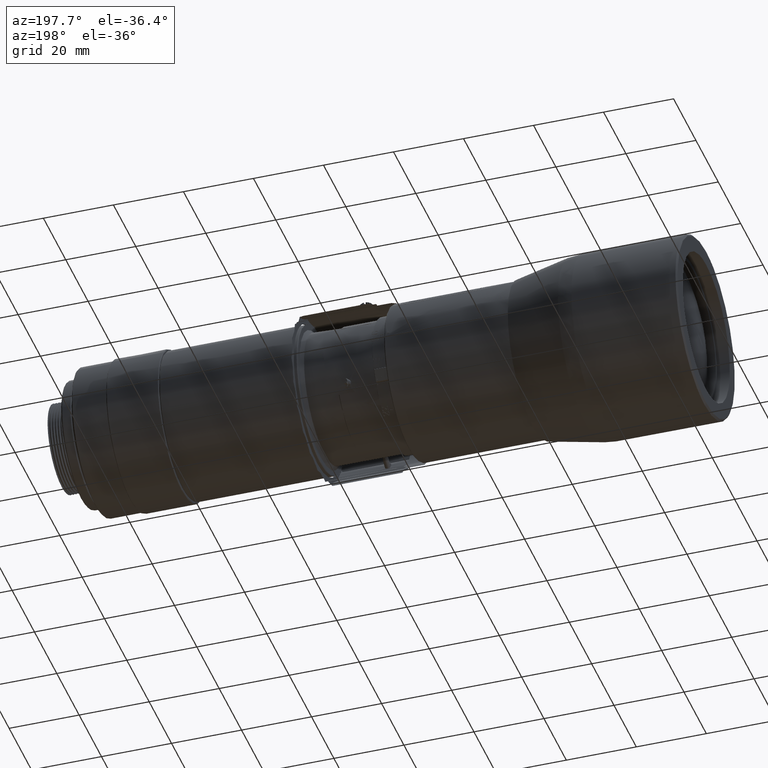
[diagram: clean part render]
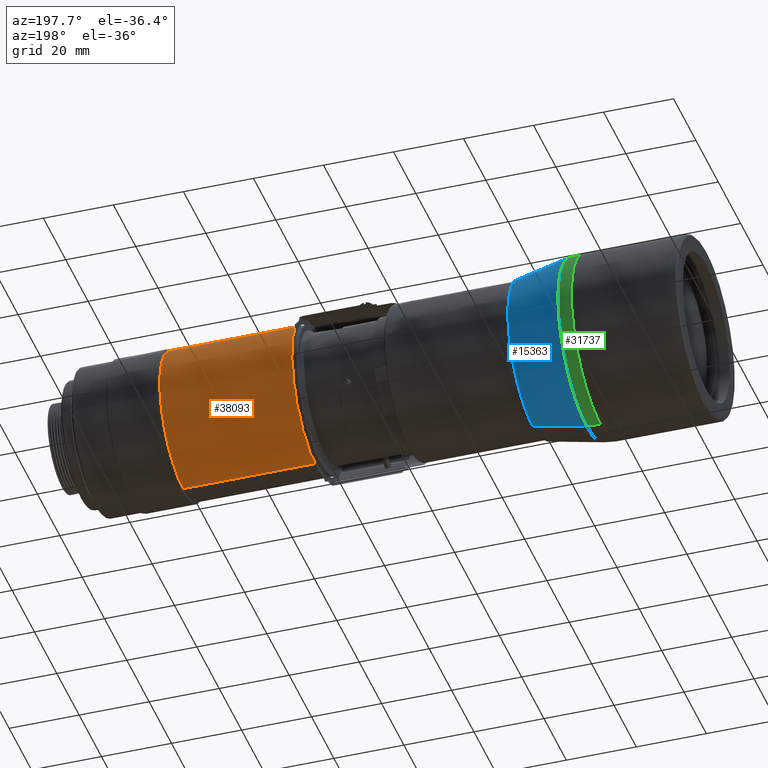
[diagram: same view with three faces highlighted in distinct colors, each labeled with its STEP entity id]
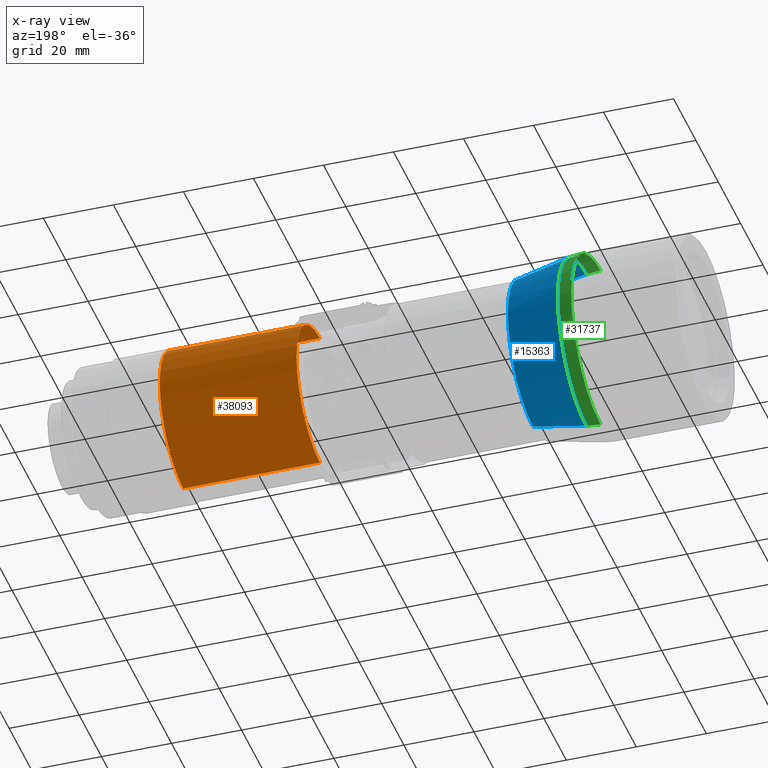
[diagram: x-ray of the same camera — body ghosted, the three highlighted faces saturated]
A machine part, auxiliary view with three faces highlighted in distinct colors.
The next image is the same camera in x-ray (body ghosted, the three faces saturated) — at least one of them is partly hidden behind the body in this view.
Their STEP definitions:

[orange] entity #38093 — the highlighted face is a freeform B-spline surface patch.
#496 = CARTESIAN_POINT ( 'NONE',  ( 64.73500235799998848, -2.000000000000000125E-09, 20.99999762099999856 ) ) ;
#507 = CARTESIAN_POINT ( 'NONE',  ( 64.73500235799998848, -8.999999999999999527E-09, -20.99999762099999856 ) ) ;
#3013 = CARTESIAN_POINT ( 'NONE',  ( 25.65500280599998462, 12.30151379899999853, 20.99999762099999145 ) ) ;
#3914 = CARTESIAN_POINT ( 'NONE',  ( 64.73500235799998848, 20.99999762099999856, -4.000000000000000249E-09 ) ) ;
#4006 = CARTESIAN_POINT ( 'NONE',  ( 25.65500280599998462, 12.30151379899999853, -20.99999762099999501 ) ) ;
#4074 = EDGE_CURVE ( 'NONE', #13064, #45751, #12262, .T. ) ;
#5580 = CARTESIAN_POINT ( 'NONE',  ( 25.65500280599998462, 20.99999762399997749, 12.30151379399999634 ) ) ;
#6169 = VERTEX_POINT ( 'NONE', #496 ) ;
#6471 = CARTESIAN_POINT ( 'NONE',  ( 64.73500235800007374, 20.99999761800000897, -12.30151380300000596 ) ) ;
#7482 = CARTESIAN_POINT ( 'NONE',  ( 25.65500280599998462, 20.99999762399997749, -12.30151379399999634 ) ) ;
#8264 = EDGE_CURVE ( 'NONE', #12250, #45751, #17563, .T. ) ;
#10732 = CARTESIAN_POINT ( 'NONE',  ( 25.65500280599998462, 20.99999761800000897, 12.30151380300000596 ) ) ;
#11802 = ORIENTED_EDGE ( 'NONE', *, *, #4074, .T. ) ;
#12250 = VERTEX_POINT ( 'NONE', #19039 ) ;
#12262 = B_SPLINE_CURVE_WITH_KNOTS ( 'NONE', 1,
 ( #507, #25964 ),
 .UNSPECIFIED., .F., .F.,
 ( 2, 2 ),
 ( 0.0000000000000000000, 1.000000000000000000 ),
 .UNSPECIFIED. ) ;
#13064 = VERTEX_POINT ( 'NONE', #37719 ) ;
#13450 = CARTESIAN_POINT ( 'NONE',  ( 64.73500235800007374, 20.99999761800000897, -12.30151380300000774 ) ) ;
#13878 = CARTESIAN_POINT ( 'NONE',  ( 64.73500235800007374, 12.30151378999999956, -20.99999762600000963 ) ) ;
#16687 = CARTESIAN_POINT ( 'NONE',  ( 64.73500235800007374, 20.99999762399997749, 12.30151379399999634 ) ) ;
#17563 =( BOUNDED_CURVE ( )  B_SPLINE_CURVE ( 3, ( #32272, #24846, #10732, #20930, #7482, #4006, #42905 ),
 .UNSPECIFIED., .F., .F. ) 
 B_SPLINE_CURVE_WITH_KNOTS ( ( 4, 3, 4 ),
 ( 0.0000000000000000000, 0.5000000000000000000, 1.000000000000000000 ),
 .UNSPECIFIED. ) 
 CURVE ( )  GEOMETRIC_REPRESENTATION_ITEM ( )  RATIONAL_B_SPLINE_CURVE ( ( 1.000000000000000000, 0.8047378540760219412, 0.8047378540760219412, 1.000000000000000000, 0.8047378540760219412, 0.8047378540760219412, 1.000000000000000000 ) ) 
 REPRESENTATION_ITEM ( '' )  );
#19039 = CARTESIAN_POINT ( 'NONE',  ( 25.65500280599999883, -5.500000000000000446E-09, 20.99999762099999856 ) ) ;
#19652 =( BOUNDED_CURVE ( )  B_SPLINE_CURVE ( 3, ( #27776, #34966, #35651, #3914, #6471, #13878, #21299 ),
 .UNSPECIFIED., .F., .F. ) 
 B_SPLINE_CURVE_WITH_KNOTS ( ( 4, 3, 4 ),
 ( 0.0000000000000000000, 0.5000000000000000000, 1.000000000000000000 ),
 .UNSPECIFIED. ) 
 CURVE ( )  GEOMETRIC_REPRESENTATION_ITEM ( )  RATIONAL_B_SPLINE_CURVE ( ( 1.000000000000000000, 0.8047378540760219412, 0.8047378540760219412, 1.000000000000000000, 0.8047378540760219412, 0.8047378540760219412, 1.000000000000000000 ) ) 
 REPRESENTATION_ITEM ( '' )  );
#20173 = FACE_OUTER_BOUND ( 'NONE', #41342, .T. ) ;
#20396 = CARTESIAN_POINT ( 'NONE',  ( 25.65500280599999883, 20.99999762099999856, -4.000000000000000249E-09 ) ) ;
#20930 = CARTESIAN_POINT ( 'NONE',  ( 25.65500280599999883, 20.99999762099999856, 4.000000000000000249E-09 ) ) ;
#21299 = CARTESIAN_POINT ( 'NONE',  ( 64.73500235799998848, -8.999999999999999527E-09, -20.99999762099999856 ) ) ;
#23637 = CARTESIAN_POINT ( 'NONE',  ( 25.65500280599998462, 20.99999761800000897, -12.30151380300000774 ) ) ;
#24846 = CARTESIAN_POINT ( 'NONE',  ( 25.65500280599998462, 12.30151378999999956, 20.99999762600000963 ) ) ;
#25964 = CARTESIAN_POINT ( 'NONE',  ( 25.65500280599999883, -5.500000000000000446E-09, -20.99999762099999856 ) ) ;
#27108 = CARTESIAN_POINT ( 'NONE',  ( 64.73500235800007374, 12.30151379899999853, 20.99999762099999145 ) ) ;
#27776 = CARTESIAN_POINT ( 'NONE',  ( 64.73500235799998848, -2.000000000000000125E-09, 20.99999762099999856 ) ) ;
#27871 = ORIENTED_EDGE ( 'NONE', *, *, #42059, .T. ) ;
#28570 = ORIENTED_EDGE ( 'NONE', *, *, #36710, .T. ) ;
#30210 =( BOUNDED_SURFACE ( )  B_SPLINE_SURFACE ( 1, 3, ( 
 ( #30590, #27108, #16687, #30816, #13450, #45143, #44913 ),
 ( #40985, #3013, #5580, #20396, #23637, #37997, #38226 ) ),
 .UNSPECIFIED., .F., .F., .F. ) 
 B_SPLINE_SURFACE_WITH_KNOTS ( ( 2, 2 ),
 ( 4, 3, 4 ),
 ( 0.0000000000000000000, 1.000000000000000000 ),
 ( 0.0000000000000000000, 0.5000000000000000000, 1.000000000000000000 ),
 .UNSPECIFIED. ) 
 GEOMETRIC_REPRESENTATION_ITEM ( )  RATIONAL_B_SPLINE_SURFACE ( (
 ( 1.000000000000000000, 0.8047378540760219412, 0.8047378540760219412, 1.000000000000000000, 0.8047378540760219412, 0.8047378540760219412, 1.000000000000000000),
 ( 1.000000000000000000, 0.8047378540760219412, 0.8047378540760219412, 1.000000000000000000, 0.8047378540760219412, 0.8047378540760219412, 1.000000000000000000) ) ) 
 REPRESENTATION_ITEM ( '' )  SURFACE ( )  );
#30590 = CARTESIAN_POINT ( 'NONE',  ( 64.73500235799998848, 0.0000000000000000000, 20.99999762099999856 ) ) ;
#30816 = CARTESIAN_POINT ( 'NONE',  ( 64.73500235799998848, 20.99999762099999856, -4.000000000000000249E-09 ) ) ;
#32272 = CARTESIAN_POINT ( 'NONE',  ( 25.65500280599999883, -5.500000000000000446E-09, 20.99999762099999856 ) ) ;
#34966 = CARTESIAN_POINT ( 'NONE',  ( 64.73500235800007374, 12.30151379899999853, 20.99999762099999501 ) ) ;
#35014 = CARTESIAN_POINT ( 'NONE',  ( 25.65500280599999883, -5.500000000000000446E-09, -20.99999762099999856 ) ) ;
#35651 = CARTESIAN_POINT ( 'NONE',  ( 64.73500235800007374, 20.99999762399997749, 12.30151379399999634 ) ) ;
#36710 = EDGE_CURVE ( 'NONE', #12250, #6169, #43646, .T. ) ;
#37619 = ORIENTED_EDGE ( 'NONE', *, *, #8264, .F. ) ;
#37719 = CARTESIAN_POINT ( 'NONE',  ( 64.73500235799998848, -8.999999999999999527E-09, -20.99999762099999856 ) ) ;
#37997 = CARTESIAN_POINT ( 'NONE',  ( 25.65500280599998462, 12.30151378999999778, -20.99999762600000608 ) ) ;
#38093 = ADVANCED_FACE ( 'NONE', ( #20173 ), #30210, .F. ) ;
#38226 = CARTESIAN_POINT ( 'NONE',  ( 25.65500280599999883, -8.999999999999999527E-09, -20.99999762099999856 ) ) ;
#40985 = CARTESIAN_POINT ( 'NONE',  ( 25.65500280599999883, 0.0000000000000000000, 20.99999762099999856 ) ) ;
#41342 = EDGE_LOOP ( 'NONE', ( #27871, #11802, #37619, #28570 ) ) ;
#42059 = EDGE_CURVE ( 'NONE', #6169, #13064, #19652, .T. ) ;
#42723 = CARTESIAN_POINT ( 'NONE',  ( 25.65500280599999883, -5.500000000000000446E-09, 20.99999762099999856 ) ) ;
#42905 = CARTESIAN_POINT ( 'NONE',  ( 25.65500280599999883, -5.500000000000000446E-09, -20.99999762099999856 ) ) ;
#43418 = CARTESIAN_POINT ( 'NONE',  ( 64.73500235799998848, -2.000000000000000125E-09, 20.99999762099999856 ) ) ;
#43646 = B_SPLINE_CURVE_WITH_KNOTS ( 'NONE', 1,
 ( #42723, #43418 ),
 .UNSPECIFIED., .F., .F.,
 ( 2, 2 ),
 ( 0.0000000000000000000, 1.000000000000000000 ),
 .UNSPECIFIED. ) ;
#44913 = CARTESIAN_POINT ( 'NONE',  ( 64.73500235799998848, -8.999999999999999527E-09, -20.99999762099999856 ) ) ;
#45143 = CARTESIAN_POINT ( 'NONE',  ( 64.73500235800007374, 12.30151378999999778, -20.99999762600000608 ) ) ;
#45751 = VERTEX_POINT ( 'NONE', #35014 ) ;

[blue] entity #15363 — the highlighted face is a freeform B-spline surface patch.
#20 = CARTESIAN_POINT ( 'NONE',  ( -50.43911717099999947, -5.500000000000000446E-09, -25.60103379000000245 ) ) ;
#668 = CARTESIAN_POINT ( 'NONE',  ( -35.14712303100002089, 21.35129305312602455, 7.248759376147805078 ) ) ;
#898 = CARTESIAN_POINT ( 'NONE',  ( -35.14712303100001378, 9.971997183265111531, 20.22329103859236099 ) ) ;
#1121 = CARTESIAN_POINT ( 'NONE',  ( -35.14712303100001378, 22.50000274575699777, -1.473805675064863818 ) ) ;
#1301 = CARTESIAN_POINT ( 'NONE',  ( -50.43911717099999947, 25.60103379000000245, -5.000000000000000105E-09 ) ) ;
#1353 = CARTESIAN_POINT ( 'NONE',  ( -35.14712303100001378, 5.835019678142797872, 21.78014632167326070 ) ) ;
#1523 = CARTESIAN_POINT ( 'NONE',  ( -35.14712303100000668, -8.999999999999999527E-09, -22.50000275700000074 ) ) ;
#1929 = EDGE_LOOP ( 'NONE', ( #10620, #34042, #26924, #28099 ) ) ;
#1975 = CARTESIAN_POINT ( 'NONE',  ( -35.14712303100003510, 22.50000276000003652, 13.18019645899999581 ) ) ;
#5432 = EDGE_CURVE ( 'NONE', #23212, #45393, #42978, .T. ) ;
#7151 = CARTESIAN_POINT ( 'NONE',  ( -35.14712303100001378, 17.88926598964513559, -13.72575643705184234 ) ) ;
#7839 = CARTESIAN_POINT ( 'NONE',  ( -35.14712303100001378, 20.22329103859236099, -9.971997183265111531 ) ) ;
#8247 = CARTESIAN_POINT ( 'NONE',  ( -50.43911717100003500, 25.60103378699998089, -14.99673839100000805 ) ) ;
#8297 = CARTESIAN_POINT ( 'NONE',  ( -50.43911717100005632, 51.20206758099995881, -25.60103378999999890 ) ) ;
#8301 = CARTESIAN_POINT ( 'NONE',  ( -35.14712303100001378, 22.35519679157398087, 2.944045886472851592 ) ) ;
#8469 = CARTESIAN_POINT ( 'NONE',  ( -50.43911717100003500, 14.99673837499999074, -25.60103379599999585 ) ) ;
#8923 = CARTESIAN_POINT ( 'NONE',  ( -35.14712303100000668, 0.0000000000000000000, 22.50000275700000074 ) ) ;
#9148 = CARTESIAN_POINT ( 'NONE',  ( -50.43911717100003500, 25.60103379300000981, 14.99673838100000367 ) ) ;
#9922 = CARTESIAN_POINT ( 'NONE',  ( -50.43911717099999947, -1.250000000000000026E-09, 25.60103379000000245 ) ) ;
#10620 = ORIENTED_EDGE ( 'NONE', *, *, #31805, .F. ) ;
#11953 = CARTESIAN_POINT ( 'NONE',  ( -35.14712303100003510, 22.50000275400000760, -13.18019646800002143 ) ) ;
#12407 = CARTESIAN_POINT ( 'NONE',  ( -50.43911717100003500, 14.99673838599999343, 25.60103379000003088 ) ) ;
#13495 = CARTESIAN_POINT ( 'NONE',  ( -35.14712303100000668, -1.333333333333333899E-09, 22.50000275325234966 ) ) ;
#13641 = CARTESIAN_POINT ( 'NONE',  ( -35.14712303100000668, 7.248759376147791755, -21.35129305312602455 ) ) ;
#14097 = CARTESIAN_POINT ( 'NONE',  ( -35.14712303100000668, 1.473805675064863596, -22.50000274575699777 ) ) ;
#14564 = CARTESIAN_POINT ( 'NONE',  ( -35.14712303100001378, 21.35129305312602455, -7.248759376147797973 ) ) ;
#14791 = CARTESIAN_POINT ( 'NONE',  ( -35.14712303100000668, 1.473805675064863818, 22.50000274575699777 ) ) ;
#14965 = CARTESIAN_POINT ( 'NONE',  ( -50.43911717099999947, -5.500000000000000446E-09, -25.60103379000000245 ) ) ;
#15014 = CARTESIAN_POINT ( 'NONE',  ( -35.14712303100002089, 19.52687111046028434, 11.27490718675019821 ) ) ;
#15363 = ADVANCED_FACE ( 'NONE', ( #40630 ), #28917, .F. ) ;
#15473 = CARTESIAN_POINT ( 'NONE',  ( -35.14712303100001378, 21.78014626095324857, 5.835019678142798760 ) ) ;
#16098 = CARTESIAN_POINT ( 'NONE',  ( -50.43911717099999947, 0.0000000000000000000, 25.60103379000000245 ) ) ;
#16584 = B_SPLINE_CURVE_WITH_KNOTS ( 'NONE', 1,
 ( #39454, #25547 ),
 .UNSPECIFIED., .F., .F.,
 ( 2, 2 ),
 ( 0.0000000000000000000, 1.000000000000000000 ),
 .UNSPECIFIED. ) ;
#17345 = CARTESIAN_POINT ( 'NONE',  ( -35.14712303100001378, 9.971997183265120412, -20.22329103859236099 ) ) ;
#18269 = CARTESIAN_POINT ( 'NONE',  ( -35.14712303100001378, 21.78014632167325360, -5.835019678142797872 ) ) ;
#18389 = EDGE_CURVE ( 'NONE', #38177, #45393, #40015, .T. ) ;
#18953 = CARTESIAN_POINT ( 'NONE',  ( -35.14712303100001378, 13.72575643705184234, 17.88926598964513559 ) ) ;
#19729 = B_SPLINE_CURVE_WITH_KNOTS ( 'NONE', 3,
 ( #45793, #14097, #31240, #45335, #13641, #17345, #28220, #42339, #24746, #38879, #7151, #21283, #7839, #14564, #18269, #21984, #1121, #32398, #8301, #15473, #668, #28683, #15014, #25206, #32626, #22207, #18953, #42800, #898, #33079, #1353, #36562, #14791, #43713 ),
 .UNSPECIFIED., .F., .F.,
 ( 4, 2, 2, 2, 2, 2, 2, 2, 2, 2, 2, 2, 2, 2, 2, 2, 4 ),
 ( 0.0000000000000000000, 0.06250000000000000000, 0.1250000000000000000, 0.1875000000000000000, 0.2500000000000000000, 0.3125000000000000000, 0.3750000000000000000, 0.4375000000000000000, 0.5000000000000000000, 0.5625000000000000000, 0.6250000000000000000, 0.6875000000000000000, 0.7500000000000000000, 0.8125000000000000000, 0.8750000000000000000, 0.9375000000000000000, 1.000000000000000000 ),
 .UNSPECIFIED. ) ;
#21283 = CARTESIAN_POINT ( 'NONE',  ( -35.14712303100001378, 19.52687111046028079, -11.27490712603019141 ) ) ;
#21663 = CARTESIAN_POINT ( 'NONE',  ( -50.43911717099999947, -5.500000000000000446E-09, -25.60103379000000245 ) ) ;
#21984 = CARTESIAN_POINT ( 'NONE',  ( -35.14712303100001378, 22.35519673085397230, -2.944045886472851592 ) ) ;
#22207 = CARTESIAN_POINT ( 'NONE',  ( -35.14712303099999957, 14.86776655730191976, 16.95204250420748338 ) ) ;
#23060 = CARTESIAN_POINT ( 'NONE',  ( -50.43911717099999947, -1.100000000000000089E-08, -25.60103379000000245 ) ) ;
#23212 = VERTEX_POINT ( 'NONE', #9922 ) ;
#24746 = CARTESIAN_POINT ( 'NONE',  ( -35.14712303100000668, 14.86776655730191976, -16.95204250420747982 ) ) ;
#25206 = CARTESIAN_POINT ( 'NONE',  ( -35.14712303099999957, 17.88926598964513204, 13.72575637633183732 ) ) ;
#25265 = CARTESIAN_POINT ( 'NONE',  ( -50.43911717100005632, 51.20206758099995881, 25.60103378999999890 ) ) ;
#25424 = VERTEX_POINT ( 'NONE', #13495 ) ;
#25547 = CARTESIAN_POINT ( 'NONE',  ( -35.14712303100000668, -1.333333333333333899E-09, 22.50000275325234966 ) ) ;
#26924 = ORIENTED_EDGE ( 'NONE', *, *, #5432, .F. ) ;
#28099 = ORIENTED_EDGE ( 'NONE', *, *, #36824, .T. ) ;
#28220 = CARTESIAN_POINT ( 'NONE',  ( -35.14712303100000668, 11.27490718675019821, -19.52687111046028079 ) ) ;
#28683 = CARTESIAN_POINT ( 'NONE',  ( -35.14712303100002089, 20.22329103859235389, 9.971997183265116860 ) ) ;
#28917 =( BOUNDED_SURFACE ( )  B_SPLINE_SURFACE ( 1, 3, ( 
 ( #8923, #40193, #1975, #32801, #11953, #33256, #1523 ),
 ( #16098, #12407, #9148, #1301, #8247, #8469, #23060 ) ),
 .UNSPECIFIED., .F., .F., .F. ) 
 B_SPLINE_SURFACE_WITH_KNOTS ( ( 2, 2 ),
 ( 4, 3, 4 ),
 ( 0.0000000000000000000, 1.000000000000000000 ),
 ( 0.0000000000000000000, 0.5000000000000000000, 1.000000000000000000 ),
 .UNSPECIFIED. ) 
 GEOMETRIC_REPRESENTATION_ITEM ( )  RATIONAL_B_SPLINE_SURFACE ( (
 ( 1.000000000000000000, 0.8047378540760219412, 0.8047378540760219412, 1.000000000000000000, 0.8047378540760219412, 0.8047378540760219412, 1.000000000000000000),
 ( 1.000000000000000000, 0.8047378540760219412, 0.8047378540760219412, 1.000000000000000000, 0.8047378540760219412, 0.8047378540760219412, 1.000000000000000000) ) ) 
 REPRESENTATION_ITEM ( '' )  SURFACE ( )  );
#29411 = CARTESIAN_POINT ( 'NONE',  ( -35.14712303100000668, -5.999999999999999960E-09, -22.50000275325234966 ) ) ;
#31240 = CARTESIAN_POINT ( 'NONE',  ( -35.14712303100000668, 2.944045886472852036, -22.35519679157398087 ) ) ;
#31805 = EDGE_CURVE ( 'NONE', #38177, #25424, #19729, .T. ) ;
#32075 = CARTESIAN_POINT ( 'NONE',  ( -35.14712303100000668, -5.999999999999999960E-09, -22.50000275325234966 ) ) ;
#32398 = CARTESIAN_POINT ( 'NONE',  ( -35.14712303099999957, 22.50000274575699422, 1.473805675064864040 ) ) ;
#32626 = CARTESIAN_POINT ( 'NONE',  ( -35.14712303100001378, 16.95204250420747272, 14.86776655730192331 ) ) ;
#32801 = CARTESIAN_POINT ( 'NONE',  ( -35.14712303100000668, 22.50000275700000074, -5.000000000000000105E-09 ) ) ;
#33079 = CARTESIAN_POINT ( 'NONE',  ( -35.14712303099999957, 7.248759376147796196, 21.35129305312602455 ) ) ;
#33256 = CARTESIAN_POINT ( 'NONE',  ( -35.14712303100003510, 13.18019645500000969, -22.50000276200000471 ) ) ;
#34042 = ORIENTED_EDGE ( 'NONE', *, *, #18389, .T. ) ;
#35465 = CARTESIAN_POINT ( 'NONE',  ( -50.43911717099999947, -1.250000000000000026E-09, 25.60103379000000245 ) ) ;
#36562 = CARTESIAN_POINT ( 'NONE',  ( -35.14712303100000668, 2.944045886472851148, 22.35519673085397230 ) ) ;
#36824 = EDGE_CURVE ( 'NONE', #23212, #25424, #16584, .T. ) ;
#38177 = VERTEX_POINT ( 'NONE', #29411 ) ;
#38879 = CARTESIAN_POINT ( 'NONE',  ( -35.14712303100001378, 16.95204250420747982, -14.86776655730192331 ) ) ;
#39454 = CARTESIAN_POINT ( 'NONE',  ( -50.43911717099999947, -1.250000000000000026E-09, 25.60103379000000245 ) ) ;
#40015 = B_SPLINE_CURVE_WITH_KNOTS ( 'NONE', 1,
 ( #32075, #21663 ),
 .UNSPECIFIED., .F., .F.,
 ( 2, 2 ),
 ( 0.0000000000000000000, 1.000000000000000000 ),
 .UNSPECIFIED. ) ;
#40193 = CARTESIAN_POINT ( 'NONE',  ( -35.14712303100003510, 13.18019646399998557, 22.50000275699999008 ) ) ;
#40630 = FACE_OUTER_BOUND ( 'NONE', #1929, .T. ) ;
#42339 = CARTESIAN_POINT ( 'NONE',  ( -35.14712303100001378, 13.72575637633183732, -17.88926598964513559 ) ) ;
#42800 = CARTESIAN_POINT ( 'NONE',  ( -35.14712303099999957, 11.27490712603019141, 19.52687111046028434 ) ) ;
#42978 =( BOUNDED_CURVE ( )  B_SPLINE_CURVE ( 3, ( #35465, #25265, #8297, #20 ),
 .UNSPECIFIED., .F., .F. ) 
 B_SPLINE_CURVE_WITH_KNOTS ( ( 4, 4 ),
 ( 0.0000000000000000000, 1.000000000000000000 ),
 .UNSPECIFIED. ) 
 CURVE ( )  GEOMETRIC_REPRESENTATION_ITEM ( )  RATIONAL_B_SPLINE_CURVE ( ( 1.000000000000000000, 0.3333333333333329818, 0.3333333333333329818, 1.000000000000000000 ) ) 
 REPRESENTATION_ITEM ( '' )  );
#43713 = CARTESIAN_POINT ( 'NONE',  ( -35.14712303100000668, -1.333333333333333899E-09, 22.50000275325234966 ) ) ;
#45335 = CARTESIAN_POINT ( 'NONE',  ( -35.14712303100000668, 5.835019678142797872, -21.78014626095324857 ) ) ;
#45393 = VERTEX_POINT ( 'NONE', #14965 ) ;
#45793 = CARTESIAN_POINT ( 'NONE',  ( -35.14712303100000668, -5.999999999999999960E-09, -22.50000275325234966 ) ) ;

[green] entity #31737 — the highlighted face is a freeform B-spline surface patch.
#20 = CARTESIAN_POINT ( 'NONE',  ( -50.43911717099999947, -5.500000000000000446E-09, -25.60103379000000245 ) ) ;
#1410 = CARTESIAN_POINT ( 'NONE',  ( -54.41396933699999749, -5.500000000000000446E-09, -25.99999937200000133 ) ) ;
#2082 = CARTESIAN_POINT ( 'NONE',  ( -54.41396933699999749, 0.0000000000000000000, -25.99999937200000133 ) ) ;
#3361 = ORIENTED_EDGE ( 'NONE', *, *, #31569, .F. ) ;
#3901 = CARTESIAN_POINT ( 'NONE',  ( -51.74852638599995913, 0.0000000000000000000, 25.86656610600001827 ) ) ;
#4841 =( BOUNDED_CURVE ( )  B_SPLINE_CURVE ( 3, ( #15676, #15452, #43691, #40442 ),
 .UNSPECIFIED., .F., .F. ) 
 B_SPLINE_CURVE_WITH_KNOTS ( ( 4, 4 ),
 ( 0.0000000000000000000, 1.000000000000000000 ),
 .UNSPECIFIED. ) 
 CURVE ( )  GEOMETRIC_REPRESENTATION_ITEM ( )  RATIONAL_B_SPLINE_CURVE ( ( 1.000000000000000000, 0.9966669549257460847, 0.9966669549257460847, 1.000000000000000000 ) ) 
 REPRESENTATION_ITEM ( '' )  );
#5324 = CARTESIAN_POINT ( 'NONE',  ( -54.41396933700006144, 51.99999874500005603, 25.99999937200002265 ) ) ;
#5432 = EDGE_CURVE ( 'NONE', #23212, #45393, #42978, .T. ) ;
#5772 = CARTESIAN_POINT ( 'NONE',  ( -53.07790799699995432, 51.99999874499999208, 25.99999937200000844 ) ) ;
#6920 = CARTESIAN_POINT ( 'NONE',  ( -50.43911717099999947, 0.0000000000000000000, 25.60103379000000245 ) ) ;
#8297 = CARTESIAN_POINT ( 'NONE',  ( -50.43911717100005632, 51.20206758099995881, -25.60103378999999890 ) ) ;
#9169 = CARTESIAN_POINT ( 'NONE',  ( -54.41396933699999749, -1.250000000000000026E-09, 25.99999937200000133 ) ) ;
#9922 = CARTESIAN_POINT ( 'NONE',  ( -50.43911717099999947, -1.250000000000000026E-09, 25.60103379000000245 ) ) ;
#10169 = CARTESIAN_POINT ( 'NONE',  ( -51.74852638600000176, 51.73313221199992995, 25.86656610599999340 ) ) ;
#11141 = EDGE_CURVE ( 'NONE', #23212, #25086, #4841, .T. ) ;
#12427 = CARTESIAN_POINT ( 'NONE',  ( -54.41396933700006144, 51.99999874500005603, -25.99999937200002265 ) ) ;
#12465 = VERTEX_POINT ( 'NONE', #24765 ) ;
#12960 = CARTESIAN_POINT ( 'NONE',  ( -53.07790799699999695, 0.0000000000000000000, -25.99999937200000133 ) ) ;
#14083 = ORIENTED_EDGE ( 'NONE', *, *, #5432, .T. ) ;
#14668 =( BOUNDED_CURVE ( )  B_SPLINE_CURVE ( 3, ( #30251, #12427, #33275, #9169 ),
 .UNSPECIFIED., .F., .F. ) 
 B_SPLINE_CURVE_WITH_KNOTS ( ( 4, 4 ),
 ( 0.0000000000000000000, 1.000000000000000000 ),
 .UNSPECIFIED. ) 
 CURVE ( )  GEOMETRIC_REPRESENTATION_ITEM ( )  RATIONAL_B_SPLINE_CURVE ( ( 1.000000000000000000, 0.3333333333333329818, 0.3333333333333329818, 1.000000000000000000 ) ) 
 REPRESENTATION_ITEM ( '' )  );
#14965 = CARTESIAN_POINT ( 'NONE',  ( -50.43911717099999947, -5.500000000000000446E-09, -25.60103379000000245 ) ) ;
#15452 = CARTESIAN_POINT ( 'NONE',  ( -51.74852638599995913, 0.0000000000000000000, 25.86656610600001827 ) ) ;
#15676 = CARTESIAN_POINT ( 'NONE',  ( -50.43911717099999947, -1.250000000000000026E-09, 25.60103379000000245 ) ) ;
#16208 = CARTESIAN_POINT ( 'NONE',  ( -53.07790799699999695, 0.0000000000000000000, 25.99999937200000133 ) ) ;
#19917 = CARTESIAN_POINT ( 'NONE',  ( -50.43911717099999947, -5.500000000000000446E-09, -25.60103379000000245 ) ) ;
#21517 = CARTESIAN_POINT ( 'NONE',  ( -50.43911717100005632, 51.20206758099995881, 25.60103378999999890 ) ) ;
#21862 = EDGE_LOOP ( 'NONE', ( #14083, #3361, #33502, #41110 ) ) ;
#23212 = VERTEX_POINT ( 'NONE', #9922 ) ;
#23513 = CARTESIAN_POINT ( 'NONE',  ( -54.41396933699999749, -1.250000000000000026E-09, 25.99999937200000133 ) ) ;
#24765 = CARTESIAN_POINT ( 'NONE',  ( -54.41396933699999749, -5.500000000000000446E-09, -25.99999937200000133 ) ) ;
#25086 = VERTEX_POINT ( 'NONE', #23513 ) ;
#25265 = CARTESIAN_POINT ( 'NONE',  ( -50.43911717100005632, 51.20206758099995881, 25.60103378999999890 ) ) ;
#25828 = EDGE_CURVE ( 'NONE', #12465, #25086, #14668, .T. ) ;
#26403 = FACE_OUTER_BOUND ( 'NONE', #21862, .T. ) ;
#29261 =( BOUNDED_SURFACE ( )  B_SPLINE_SURFACE ( 3, 3, ( 
 ( #37060, #5324, #33810, #2082 ),
 ( #16208, #5772, #30341, #12960 ),
 ( #3901, #10169, #42568, #41639 ),
 ( #6920, #21517, #34957, #35638 ) ),
 .UNSPECIFIED., .F., .F., .F. ) 
 B_SPLINE_SURFACE_WITH_KNOTS ( ( 4, 4 ),
 ( 4, 4 ),
 ( 0.0000000000000000000, 1.000000000000000000 ),
 ( 0.0000000000000000000, 1.000000000000000000 ),
 .UNSPECIFIED. ) 
 GEOMETRIC_REPRESENTATION_ITEM ( )  RATIONAL_B_SPLINE_SURFACE ( (
 ( 1.000000000000000000, 0.3333333333333329818, 0.3333333333333329818, 1.000000000000000000),
 ( 0.9966669549257460847, 0.3322223183085820097, 0.3322223183085820097, 0.9966669549257460847),
 ( 0.9966669549257460847, 0.3322223183085820097, 0.3322223183085820097, 0.9966669549257460847),
 ( 1.000000000000000000, 0.3333333333333329818, 0.3333333333333329818, 1.000000000000000000) ) ) 
 REPRESENTATION_ITEM ( '' )  SURFACE ( )  );
#30251 = CARTESIAN_POINT ( 'NONE',  ( -54.41396933699999749, -5.500000000000000446E-09, -25.99999937200000133 ) ) ;
#30341 = CARTESIAN_POINT ( 'NONE',  ( -53.07790799699995432, 51.99999874499999208, -25.99999937200000844 ) ) ;
#31569 = EDGE_CURVE ( 'NONE', #12465, #45393, #43454, .T. ) ;
#31737 = ADVANCED_FACE ( 'NONE', ( #26403 ), #29261, .T. ) ;
#33275 = CARTESIAN_POINT ( 'NONE',  ( -54.41396933700006144, 51.99999874500005603, 25.99999937200002265 ) ) ;
#33502 = ORIENTED_EDGE ( 'NONE', *, *, #25828, .T. ) ;
#33810 = CARTESIAN_POINT ( 'NONE',  ( -54.41396933700006144, 51.99999874500005603, -25.99999937200002265 ) ) ;
#34036 = CARTESIAN_POINT ( 'NONE',  ( -53.07790799699999695, 0.0000000000000000000, -25.99999937200000133 ) ) ;
#34957 = CARTESIAN_POINT ( 'NONE',  ( -50.43911717100005632, 51.20206758099995881, -25.60103378999999890 ) ) ;
#35465 = CARTESIAN_POINT ( 'NONE',  ( -50.43911717099999947, -1.250000000000000026E-09, 25.60103379000000245 ) ) ;
#35638 = CARTESIAN_POINT ( 'NONE',  ( -50.43911717099999947, 0.0000000000000000000, -25.60103379000000245 ) ) ;
#37060 = CARTESIAN_POINT ( 'NONE',  ( -54.41396933699999749, 0.0000000000000000000, 25.99999937200000133 ) ) ;
#40442 = CARTESIAN_POINT ( 'NONE',  ( -54.41396933699999749, -1.250000000000000026E-09, 25.99999937200000133 ) ) ;
#41110 = ORIENTED_EDGE ( 'NONE', *, *, #11141, .F. ) ;
#41412 = CARTESIAN_POINT ( 'NONE',  ( -51.74852638599995913, 0.0000000000000000000, -25.86656610600001827 ) ) ;
#41639 = CARTESIAN_POINT ( 'NONE',  ( -51.74852638599995913, 0.0000000000000000000, -25.86656610600001827 ) ) ;
#42568 = CARTESIAN_POINT ( 'NONE',  ( -51.74852638600000176, 51.73313221199992995, -25.86656610599999340 ) ) ;
#42978 =( BOUNDED_CURVE ( )  B_SPLINE_CURVE ( 3, ( #35465, #25265, #8297, #20 ),
 .UNSPECIFIED., .F., .F. ) 
 B_SPLINE_CURVE_WITH_KNOTS ( ( 4, 4 ),
 ( 0.0000000000000000000, 1.000000000000000000 ),
 .UNSPECIFIED. ) 
 CURVE ( )  GEOMETRIC_REPRESENTATION_ITEM ( )  RATIONAL_B_SPLINE_CURVE ( ( 1.000000000000000000, 0.3333333333333329818, 0.3333333333333329818, 1.000000000000000000 ) ) 
 REPRESENTATION_ITEM ( '' )  );
#43454 =( BOUNDED_CURVE ( )  B_SPLINE_CURVE ( 3, ( #1410, #34036, #41412, #19917 ),
 .UNSPECIFIED., .F., .F. ) 
 B_SPLINE_CURVE_WITH_KNOTS ( ( 4, 4 ),
 ( 0.0000000000000000000, 1.000000000000000000 ),
 .UNSPECIFIED. ) 
 CURVE ( )  GEOMETRIC_REPRESENTATION_ITEM ( )  RATIONAL_B_SPLINE_CURVE ( ( 1.000000000000000000, 0.9966669549257460847, 0.9966669549257460847, 1.000000000000000000 ) ) 
 REPRESENTATION_ITEM ( '' )  );
#43691 = CARTESIAN_POINT ( 'NONE',  ( -53.07790799699999695, 0.0000000000000000000, 25.99999937200000133 ) ) ;
#45393 = VERTEX_POINT ( 'NONE', #14965 ) ;